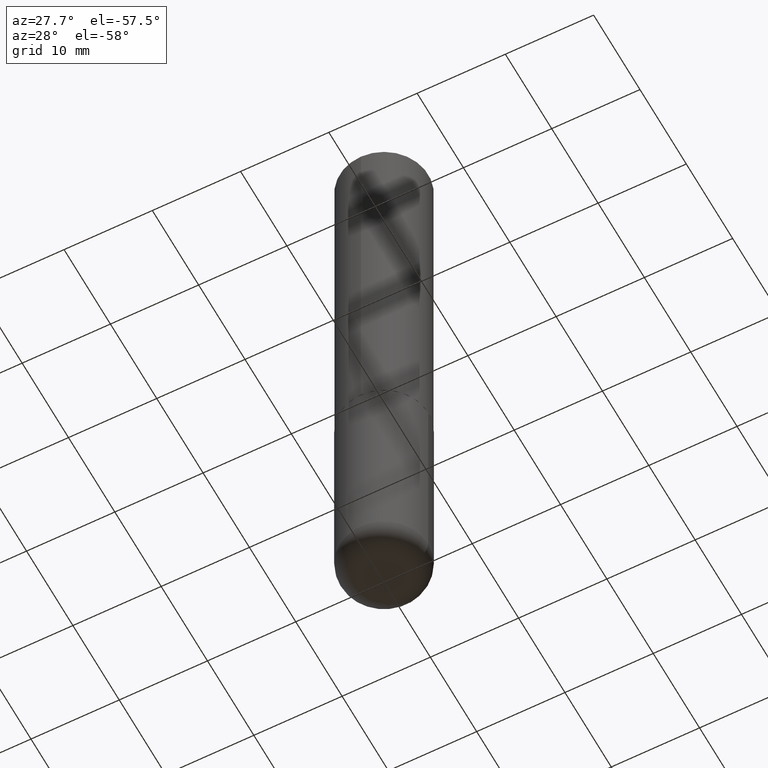
[diagram: clean part render]
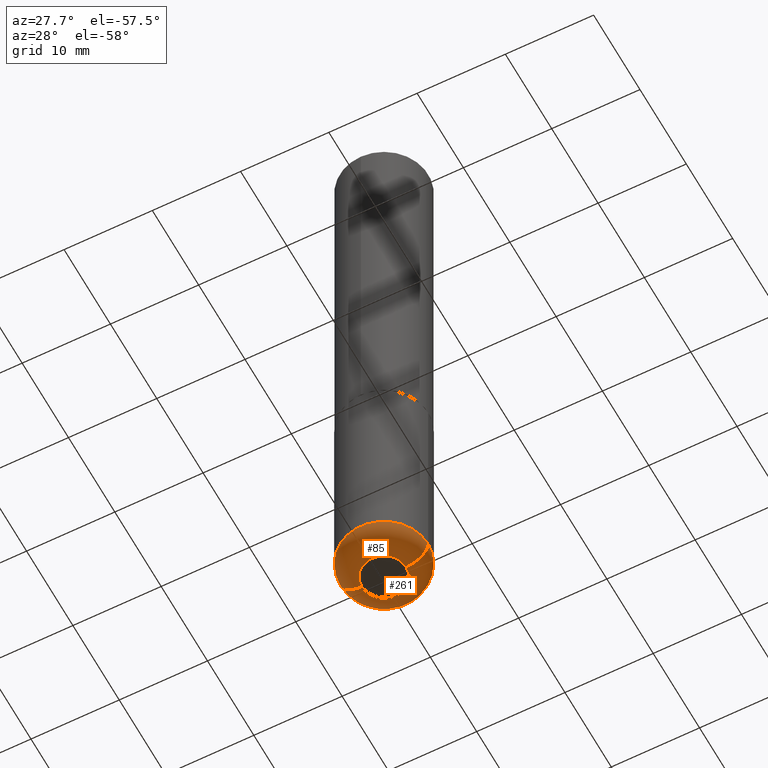
[diagram: same view with one multi-face feature highlighted, each face labeled with its STEP entity id]
A machine part, auxiliary view. The highlighted faces form ONE feature: a constant-radius fillet chain: 2 tangent blend faces with common blend radius 2.4994 mm. The faces share edges in the B-rep.
Their STEP definitions:
[1] entity #85 (Torus):
#6 = DIRECTION ( 'NONE',  ( -1.000000000000000000, 7.105427357601001859E-15, 0.000000000000000000 ) ) ;
#8 = VERTEX_POINT ( 'NONE', #18 ) ;
#18 = CARTESIAN_POINT ( 'NONE',  ( 0.09845000000000002360, -1.058442567870299660E-14, -2.834600000000000453 ) ) ;
#21 = CIRCLE ( 'NONE', #329, 0.09845000000000002360 ) ;
#24 = DIRECTION ( 'NONE',  ( -2.445468806185136597E-29, 3.491481338843145583E-15, 1.000000000000000000 ) ) ;
#27 = CIRCLE ( 'NONE', #259, 0.1968500000000000250 ) ;
#40 = VERTEX_POINT ( 'NONE', #352 ) ;
#47 = DIRECTION ( 'NONE',  ( -2.445468806185136597E-29, 3.491481338843145583E-15, 1.000000000000000000 ) ) ;
#48 = DIRECTION ( 'NONE',  ( 1.000000000000000000, -6.982962677686273021E-15, 0.000000000000000000 ) ) ;
#63 = ORIENTED_EDGE ( 'NONE', *, *, #104, .T. ) ;
#64 = DIRECTION ( 'NONE',  ( 1.000000000000000000, -6.982962677686273810E-15, 0.000000000000000000 ) ) ;
#75 = DIRECTION ( 'NONE',  ( 1.000000000000000000, -6.982962677686264344E-15, 4.883557194083112340E-29 ) ) ;
#85 = ADVANCED_FACE ( 'NONE', ( #179 ), #212, .T. ) ;
#86 = CARTESIAN_POINT ( 'NONE',  ( -0.09845000000000000973, -8.853861915986796673E-15, -2.736199999999999743 ) ) ;
#87 = CARTESIAN_POINT ( 'NONE',  ( 0.1968500000000001915, -1.092798744244515797E-14, -2.736199999999999743 ) ) ;
#104 = EDGE_CURVE ( 'NONE', #283, #8, #21, .T. ) ;
#110 = EDGE_LOOP ( 'NONE', ( #338, #63, #170, #361 ) ) ;
#126 = EDGE_CURVE ( 'NONE', #40, #231, #27, .T. ) ;
#134 = DIRECTION ( 'NONE',  ( -6.982962677686266711E-15, -1.000000000000000000, 3.491481338843145583E-15 ) ) ;
#142 = AXIS2_PLACEMENT_3D ( 'NONE', #150, #47, #75 ) ;
#150 = CARTESIAN_POINT ( 'NONE',  ( 6.691291747483769253E-29, -9.553391239342614783E-15, -2.736199999999999743 ) ) ;
#170 = ORIENTED_EDGE ( 'NONE', *, *, #403, .T. ) ;
#179 = FACE_OUTER_BOUND ( 'NONE', #110, .T. ) ;
#212 = TOROIDAL_SURFACE ( 'NONE', #142, 0.09845000000000000973, 0.09840000000000038993 ) ;
#214 = CARTESIAN_POINT ( 'NONE',  ( 6.691291747483769253E-29, -9.553391239342614783E-15, -2.736199999999999743 ) ) ;
#228 = AXIS2_PLACEMENT_3D ( 'NONE', #300, #134, #64 ) ;
#231 = VERTEX_POINT ( 'NONE', #87 ) ;
#252 = CARTESIAN_POINT ( 'NONE',  ( -0.09845000000000002360, -8.676055771863907124E-15, -2.834600000000000453 ) ) ;
#259 = AXIS2_PLACEMENT_3D ( 'NONE', #214, #350, #404 ) ;
#274 = EDGE_CURVE ( 'NONE', #283, #40, #378, .T. ) ;
#283 = VERTEX_POINT ( 'NONE', #252 ) ;
#300 = CARTESIAN_POINT ( 'NONE',  ( 0.09845000000000000973, -1.024086391496082892E-14, -2.736199999999999743 ) ) ;
#303 = CIRCLE ( 'NONE', #228, 0.09840000000000037605 ) ;
#329 = AXIS2_PLACEMENT_3D ( 'NONE', #342, #24, #48 ) ;
#338 = ORIENTED_EDGE ( 'NONE', *, *, #274, .F. ) ;
#342 = CARTESIAN_POINT ( 'NONE',  ( 6.931925878012389760E-29, -9.896953003084782463E-15, -2.834600000000000453 ) ) ;
#350 = DIRECTION ( 'NONE',  ( -2.445468806185136597E-29, 3.491481338843145583E-15, 1.000000000000000000 ) ) ;
#352 = CARTESIAN_POINT ( 'NONE',  ( -0.1968500000000001915, -8.154687863998856206E-15, -2.736199999999999743 ) ) ;
#354 = AXIS2_PLACEMENT_3D ( 'NONE', #86, #384, #6 ) ;
#361 = ORIENTED_EDGE ( 'NONE', *, *, #126, .F. ) ;
#378 = CIRCLE ( 'NONE', #354, 0.09840000000000037605 ) ;
#384 = DIRECTION ( 'NONE',  ( 7.105427357601001859E-15, 1.000000000000000000, -3.491481338843145583E-15 ) ) ;
#403 = EDGE_CURVE ( 'NONE', #8, #231, #303, .T. ) ;
#404 = DIRECTION ( 'NONE',  ( 1.000000000000000000, -6.982962677686267499E-15, 0.000000000000000000 ) ) ;
[2] entity #261 (Torus):
#6 = DIRECTION ( 'NONE',  ( -1.000000000000000000, 7.105427357601001859E-15, 0.000000000000000000 ) ) ;
#8 = VERTEX_POINT ( 'NONE', #18 ) ;
#18 = CARTESIAN_POINT ( 'NONE',  ( 0.09845000000000002360, -1.058442567870299660E-14, -2.834600000000000453 ) ) ;
#22 = AXIS2_PLACEMENT_3D ( 'NONE', #36, #394, #239 ) ;
#30 = CARTESIAN_POINT ( 'NONE',  ( 6.691291747483769253E-29, -9.553391239342614783E-15, -2.736199999999999743 ) ) ;
#31 = DIRECTION ( 'NONE',  ( -2.445468806185136597E-29, 3.491481338843145583E-15, 1.000000000000000000 ) ) ;
#35 = FACE_OUTER_BOUND ( 'NONE', #204, .T. ) ;
#36 = CARTESIAN_POINT ( 'NONE',  ( 6.931925878012389760E-29, -9.896953003084782463E-15, -2.834600000000000453 ) ) ;
#40 = VERTEX_POINT ( 'NONE', #352 ) ;
#53 = ORIENTED_EDGE ( 'NONE', *, *, #360, .T. ) ;
#55 = CIRCLE ( 'NONE', #221, 0.1968500000000000250 ) ;
#58 = DIRECTION ( 'NONE',  ( 1.000000000000000000, -6.982962677686264344E-15, 4.883557194083112340E-29 ) ) ;
#64 = DIRECTION ( 'NONE',  ( 1.000000000000000000, -6.982962677686273810E-15, 0.000000000000000000 ) ) ;
#68 = ORIENTED_EDGE ( 'NONE', *, *, #403, .F. ) ;
#70 = ORIENTED_EDGE ( 'NONE', *, *, #274, .T. ) ;
#86 = CARTESIAN_POINT ( 'NONE',  ( -0.09845000000000000973, -8.853861915986796673E-15, -2.736199999999999743 ) ) ;
#87 = CARTESIAN_POINT ( 'NONE',  ( 0.1968500000000001915, -1.092798744244515797E-14, -2.736199999999999743 ) ) ;
#133 = ORIENTED_EDGE ( 'NONE', *, *, #315, .F. ) ;
#134 = DIRECTION ( 'NONE',  ( -6.982962677686266711E-15, -1.000000000000000000, 3.491481338843145583E-15 ) ) ;
#204 = EDGE_LOOP ( 'NONE', ( #53, #70, #133, #68 ) ) ;
#221 = AXIS2_PLACEMENT_3D ( 'NONE', #30, #31, #356 ) ;
#224 = DIRECTION ( 'NONE',  ( -2.445468806185136597E-29, 3.491481338843145583E-15, 1.000000000000000000 ) ) ;
#228 = AXIS2_PLACEMENT_3D ( 'NONE', #300, #134, #64 ) ;
#231 = VERTEX_POINT ( 'NONE', #87 ) ;
#239 = DIRECTION ( 'NONE',  ( 1.000000000000000000, -6.982962677686273021E-15, 0.000000000000000000 ) ) ;
#250 = CIRCLE ( 'NONE', #22, 0.09845000000000002360 ) ;
#252 = CARTESIAN_POINT ( 'NONE',  ( -0.09845000000000002360, -8.676055771863907124E-15, -2.834600000000000453 ) ) ;
#261 = ADVANCED_FACE ( 'NONE', ( #35 ), #348, .T. ) ;
#274 = EDGE_CURVE ( 'NONE', #283, #40, #378, .T. ) ;
#283 = VERTEX_POINT ( 'NONE', #252 ) ;
#292 = CARTESIAN_POINT ( 'NONE',  ( 6.691291747483769253E-29, -9.553391239342614783E-15, -2.736199999999999743 ) ) ;
#300 = CARTESIAN_POINT ( 'NONE',  ( 0.09845000000000000973, -1.024086391496082892E-14, -2.736199999999999743 ) ) ;
#303 = CIRCLE ( 'NONE', #228, 0.09840000000000037605 ) ;
#315 = EDGE_CURVE ( 'NONE', #231, #40, #55, .T. ) ;
#340 = AXIS2_PLACEMENT_3D ( 'NONE', #292, #224, #58 ) ;
#348 = TOROIDAL_SURFACE ( 'NONE', #340, 0.09845000000000000973, 0.09840000000000038993 ) ;
#352 = CARTESIAN_POINT ( 'NONE',  ( -0.1968500000000001915, -8.154687863998856206E-15, -2.736199999999999743 ) ) ;
#354 = AXIS2_PLACEMENT_3D ( 'NONE', #86, #384, #6 ) ;
#356 = DIRECTION ( 'NONE',  ( 1.000000000000000000, -6.982962677686267499E-15, 0.000000000000000000 ) ) ;
#360 = EDGE_CURVE ( 'NONE', #8, #283, #250, .T. ) ;
#378 = CIRCLE ( 'NONE', #354, 0.09840000000000037605 ) ;
#384 = DIRECTION ( 'NONE',  ( 7.105427357601001859E-15, 1.000000000000000000, -3.491481338843145583E-15 ) ) ;
#394 = DIRECTION ( 'NONE',  ( -2.445468806185136597E-29, 3.491481338843145583E-15, 1.000000000000000000 ) ) ;
#403 = EDGE_CURVE ( 'NONE', #8, #231, #303, .T. ) ;